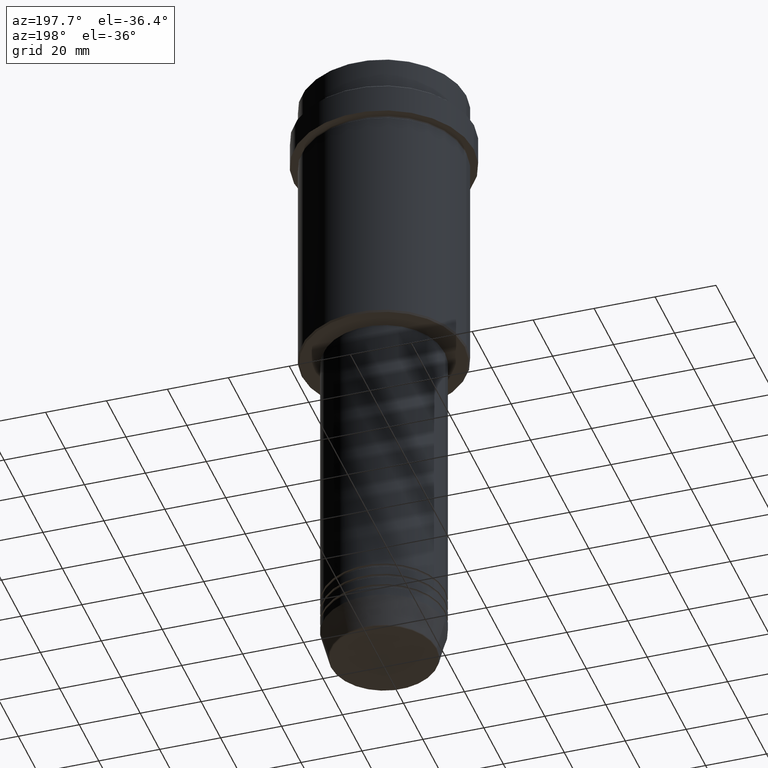
[diagram: clean part render]
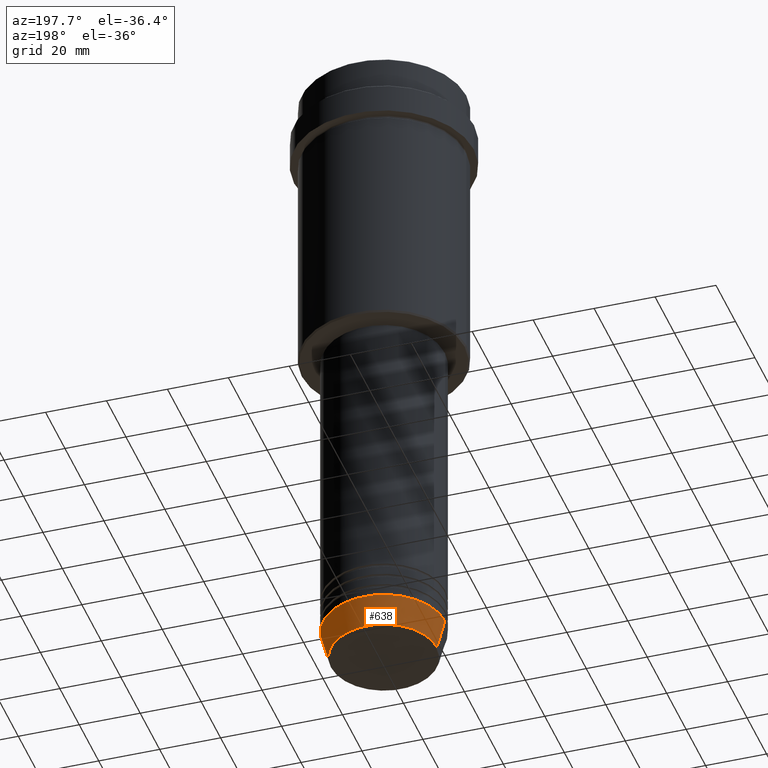
[diagram: same view with one face highlighted and labeled with its STEP entity id]
A machine part, auxiliary view. The second image highlights one B-rep face of the part: STEP entity #638.
In plain terms, the highlighted conical surface has half-angle 15 deg.
Its self-contained STEP definition (entity closure, byte-faithful):
#18 = FACE_OUTER_BOUND ( 'NONE', #53, .T. ) ;
#20 = LINE ( 'NONE', #1079, #711 ) ;
#53 = EDGE_LOOP ( 'NONE', ( #872, #1029, #339, #484 ) ) ;
#137 = VERTEX_POINT ( 'NONE', #996 ) ;
#141 = EDGE_CURVE ( 'NONE', #966, #137, #20, .T. ) ;
#173 = CARTESIAN_POINT ( 'NONE',  ( -17.41980749484381974, 2.291302373663531126E-15, -212.6294095225512706 ) ) ;
#193 = DIRECTION ( 'NONE',  ( 0.2588190451025205729, 0.000000000000000000, 0.9659258262890683122 ) ) ;
#216 = LINE ( 'NONE', #1405, #1284 ) ;
#232 = DIRECTION ( 'NONE',  ( -0.2588190451025205729, 3.169619151431761860E-17, 0.9659258262890683122 ) ) ;
#243 = CARTESIAN_POINT ( 'NONE',  ( 0.000000000000000000, 0.000000000000000000, -203.0000000000000000 ) ) ;
#302 = CARTESIAN_POINT ( 'NONE',  ( 20.00000000000000000, 0.000000000000000000, -203.0000000000000000 ) ) ;
#339 = ORIENTED_EDGE ( 'NONE', *, *, #392, .F. ) ;
#392 = EDGE_CURVE ( 'NONE', #493, #137, #1171, .T. ) ;
#413 = CARTESIAN_POINT ( 'NONE',  ( 17.41980749484381974, 0.000000000000000000, -212.6294095225512706 ) ) ;
#448 = VERTEX_POINT ( 'NONE', #413 ) ;
#484 = ORIENTED_EDGE ( 'NONE', *, *, #587, .F. ) ;
#493 = VERTEX_POINT ( 'NONE', #302 ) ;
#505 = EDGE_CURVE ( 'NONE', #448, #966, #823, .T. ) ;
#557 = AXIS2_PLACEMENT_3D ( 'NONE', #1066, #637, #719 ) ;
#587 = EDGE_CURVE ( 'NONE', #448, #493, #216, .T. ) ;
#637 = DIRECTION ( 'NONE',  ( -0.000000000000000000, -0.000000000000000000, 1.000000000000000000 ) ) ;
#638 = ADVANCED_FACE ( 'NONE', ( #18 ), #1307, .T. ) ;
#696 = DIRECTION ( 'NONE',  ( 1.000000000000000000, 0.000000000000000000, 0.000000000000000000 ) ) ;
#711 = VECTOR ( 'NONE', #232, 1000.000000000000114 ) ;
#719 = DIRECTION ( 'NONE',  ( 1.000000000000000000, 0.000000000000000000, 0.000000000000000000 ) ) ;
#766 = CARTESIAN_POINT ( 'NONE',  ( 0.000000000000000000, 0.000000000000000000, -203.0000000000000000 ) ) ;
#802 = DIRECTION ( 'NONE',  ( -0.000000000000000000, -0.000000000000000000, 1.000000000000000000 ) ) ;
#823 = CIRCLE ( 'NONE', #557, 17.41980749484381974 ) ;
#872 = ORIENTED_EDGE ( 'NONE', *, *, #505, .T. ) ;
#965 = DIRECTION ( 'NONE',  ( -0.000000000000000000, -0.000000000000000000, 1.000000000000000000 ) ) ;
#966 = VERTEX_POINT ( 'NONE', #173 ) ;
#996 = CARTESIAN_POINT ( 'NONE',  ( -20.00000000000000000, 2.449293598294706513E-15, -203.0000000000000000 ) ) ;
#999 = DIRECTION ( 'NONE',  ( 1.000000000000000000, 0.000000000000000000, 0.000000000000000000 ) ) ;
#1029 = ORIENTED_EDGE ( 'NONE', *, *, #141, .T. ) ;
#1032 = AXIS2_PLACEMENT_3D ( 'NONE', #766, #965, #999 ) ;
#1066 = CARTESIAN_POINT ( 'NONE',  ( 0.000000000000000000, 0.000000000000000000, -212.6294095225512706 ) ) ;
#1072 = AXIS2_PLACEMENT_3D ( 'NONE', #243, #802, #696 ) ;
#1079 = CARTESIAN_POINT ( 'NONE',  ( -20.00000000000000000, 2.449293598294706513E-15, -203.0000000000000000 ) ) ;
#1171 = CIRCLE ( 'NONE', #1072, 20.00000000000000000 ) ;
#1284 = VECTOR ( 'NONE', #193, 1000.000000000000114 ) ;
#1307 = CONICAL_SURFACE ( 'NONE', #1032, 20.00000000000000000, 0.2617993877991492413 ) ;
#1405 = CARTESIAN_POINT ( 'NONE',  ( 20.00000000000000000, 0.000000000000000000, -203.0000000000000000 ) ) ;